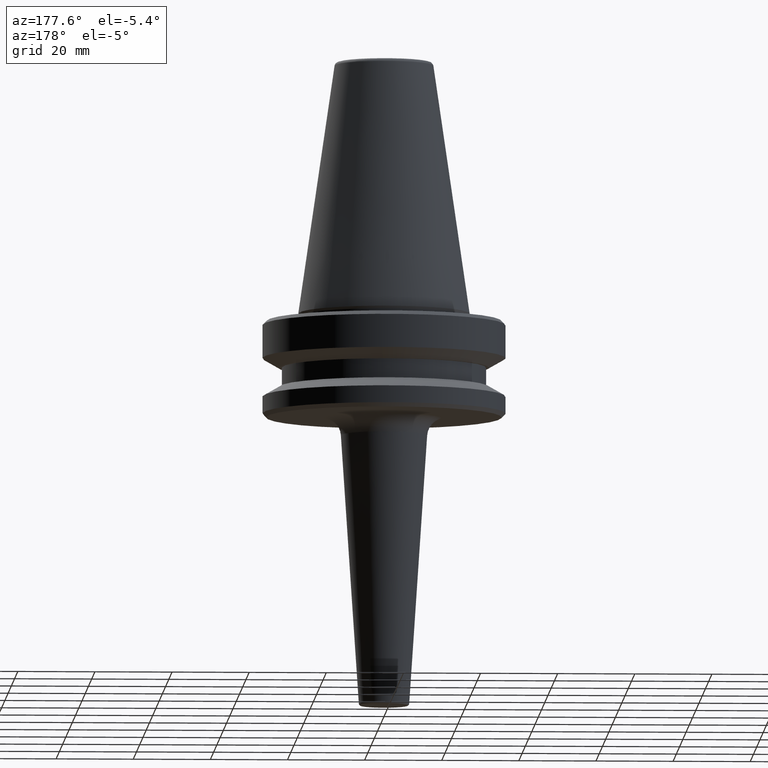
[diagram: clean part render]
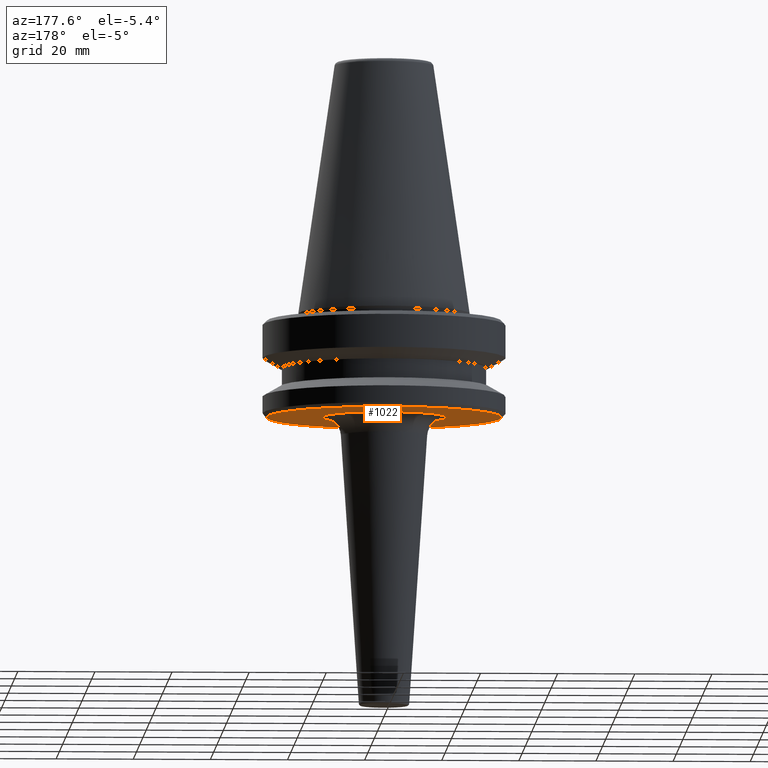
[diagram: same view with one face highlighted and labeled with its STEP entity id]
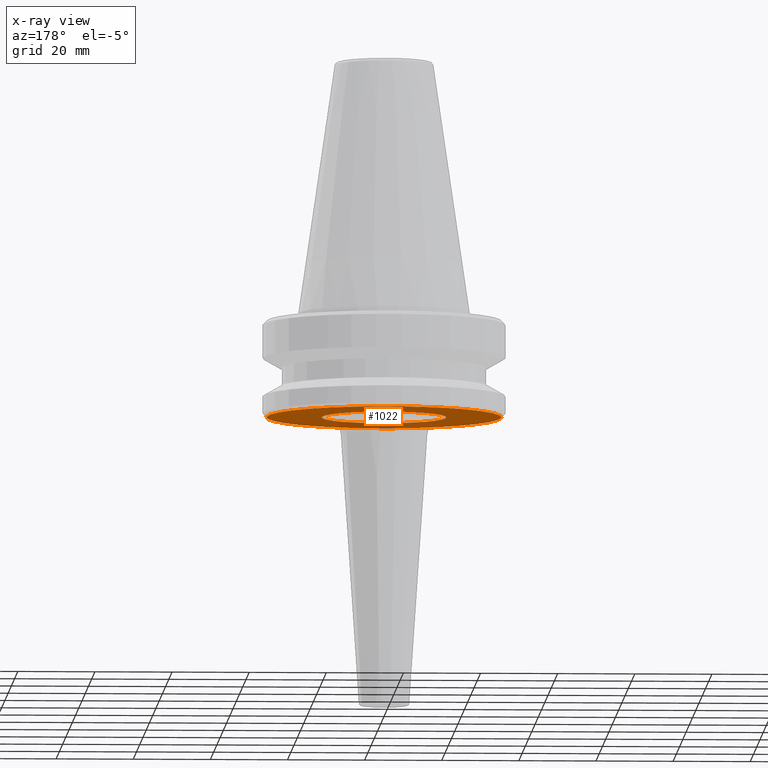
[diagram: x-ray of the same camera — body ghosted, the highlighted face saturated]
A machine part, auxiliary view. The second image highlights one B-rep face of the part: STEP entity #1022.
The next image is the same camera in x-ray: the body ghosted, the highlighted face saturated — about 17% of this face is hidden behind the body in this view.
In plain terms, the highlighted planar face has unit normal (0, -0, 1).
Its self-contained STEP definition (entity closure, byte-faithful):
#6 = DIRECTION ( 'NONE',  ( 1.000000000000000000, 0.0000000000000000000, 0.0000000000000000000 ) ) ;
#22 = VERTEX_POINT ( 'NONE', #896 ) ;
#65 = VERTEX_POINT ( 'NONE', #624 ) ;
#71 = DIRECTION ( 'NONE',  ( 0.0000000000000000000, -0.0000000000000000000, 1.000000000000000000 ) ) ;
#98 = CIRCLE ( 'NONE', #717, 30.49999999999241900 ) ;
#117 = CARTESIAN_POINT ( 'NONE',  ( 0.0000000000000000000, 0.0000000000000000000, -92.40000000000807700 ) ) ;
#164 = AXIS2_PLACEMENT_3D ( 'NONE', #1009, #840, #922 ) ;
#165 = EDGE_CURVE ( 'NONE', #728, #65, #795, .T. ) ;
#179 = CARTESIAN_POINT ( 'NONE',  ( 0.0000000000000000000, 2.685979460424941200E-013, -92.40000000000806300 ) ) ;
#223 = CARTESIAN_POINT ( 'NONE',  ( 30.49999999999241900, 0.0000000000000000000, -92.40000000000803500 ) ) ;
#253 = ORIENTED_EDGE ( 'NONE', *, *, #859, .F. ) ;
#269 = DIRECTION ( 'NONE',  ( -0.0000000000000000000, -0.0000000000000000000, 1.000000000000000000 ) ) ;
#310 = FACE_BOUND ( 'NONE', #906, .T. ) ;
#340 = FACE_OUTER_BOUND ( 'NONE', #1043, .T. ) ;
#382 = AXIS2_PLACEMENT_3D ( 'NONE', #455, #804, #569 ) ;
#402 = CARTESIAN_POINT ( 'NONE',  ( 16.17776545945764300, 0.0000000000000000000, -92.40000000000809200 ) ) ;
#447 = CARTESIAN_POINT ( 'NONE',  ( 0.0000000000000000000, 0.0000000000000000000, -92.40000000000803500 ) ) ;
#455 = CARTESIAN_POINT ( 'NONE',  ( 0.0000000000000000000, 0.0000000000000000000, -92.40000000000807700 ) ) ;
#469 = ORIENTED_EDGE ( 'NONE', *, *, #479, .T. ) ;
#479 = EDGE_CURVE ( 'NONE', #65, #728, #800, .T. ) ;
#496 = DIRECTION ( 'NONE',  ( -0.0000000000000000000, -0.0000000000000000000, 1.000000000000000000 ) ) ;
#562 = PLANE ( 'NONE',  #1023 ) ;
#569 = DIRECTION ( 'NONE',  ( 1.000000000000000000, 0.0000000000000000000, 0.0000000000000000000 ) ) ;
#583 = CIRCLE ( 'NONE', #164, 30.49999999999241900 ) ;
#624 = CARTESIAN_POINT ( 'NONE',  ( -16.17776545945764300, 1.981204868728141100E-015, -92.40000000000809200 ) ) ;
#639 = DIRECTION ( 'NONE',  ( 1.000000000000000000, 0.0000000000000000000, 0.0000000000000000000 ) ) ;
#673 = VERTEX_POINT ( 'NONE', #223 ) ;
#701 = ORIENTED_EDGE ( 'NONE', *, *, #165, .T. ) ;
#717 = AXIS2_PLACEMENT_3D ( 'NONE', #447, #269, #898 ) ;
#728 = VERTEX_POINT ( 'NONE', #402 ) ;
#766 = AXIS2_PLACEMENT_3D ( 'NONE', #117, #496, #6 ) ;
#795 = CIRCLE ( 'NONE', #382, 16.17776545945764300 ) ;
#800 = CIRCLE ( 'NONE', #766, 16.17776545945764300 ) ;
#804 = DIRECTION ( 'NONE',  ( -0.0000000000000000000, -0.0000000000000000000, 1.000000000000000000 ) ) ;
#840 = DIRECTION ( 'NONE',  ( -0.0000000000000000000, -0.0000000000000000000, 1.000000000000000000 ) ) ;
#859 = EDGE_CURVE ( 'NONE', #673, #22, #583, .T. ) ;
#896 = CARTESIAN_POINT ( 'NONE',  ( -30.49999999999241900, 3.796405077356336000E-015, -92.40000000000803500 ) ) ;
#898 = DIRECTION ( 'NONE',  ( 1.000000000000000000, 0.0000000000000000000, 0.0000000000000000000 ) ) ;
#901 = ORIENTED_EDGE ( 'NONE', *, *, #925, .F. ) ;
#906 = EDGE_LOOP ( 'NONE', ( #701, #469 ) ) ;
#922 = DIRECTION ( 'NONE',  ( 1.000000000000000000, 0.0000000000000000000, 0.0000000000000000000 ) ) ;
#925 = EDGE_CURVE ( 'NONE', #22, #673, #98, .T. ) ;
#1009 = CARTESIAN_POINT ( 'NONE',  ( 0.0000000000000000000, 0.0000000000000000000, -92.40000000000803500 ) ) ;
#1022 = ADVANCED_FACE ( 'NONE', ( #340, #310 ), #562, .F. ) ;
#1023 = AXIS2_PLACEMENT_3D ( 'NONE', #179, #71, #639 ) ;
#1043 = EDGE_LOOP ( 'NONE', ( #253, #901 ) ) ;